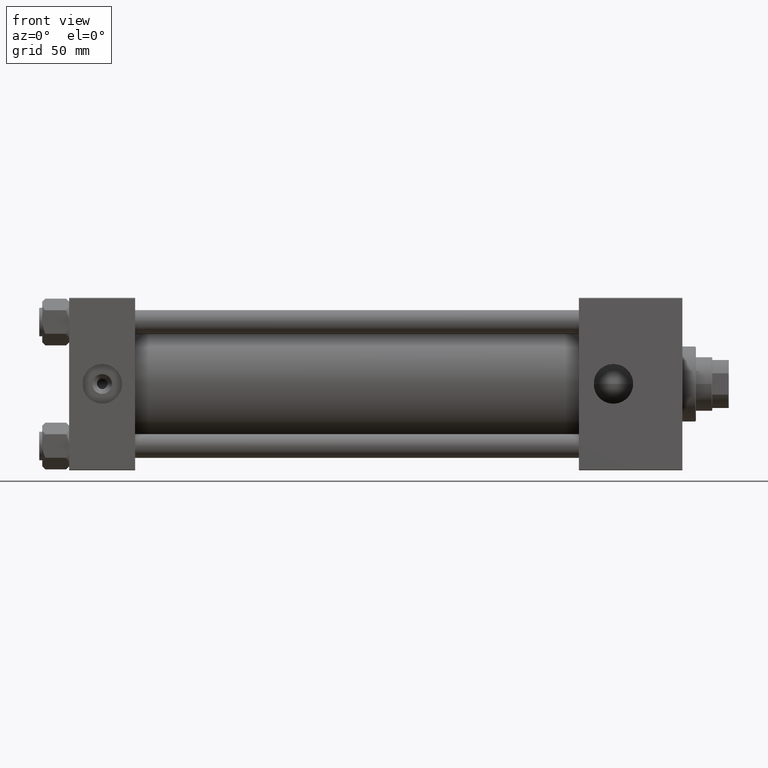
[diagram: clean part render]
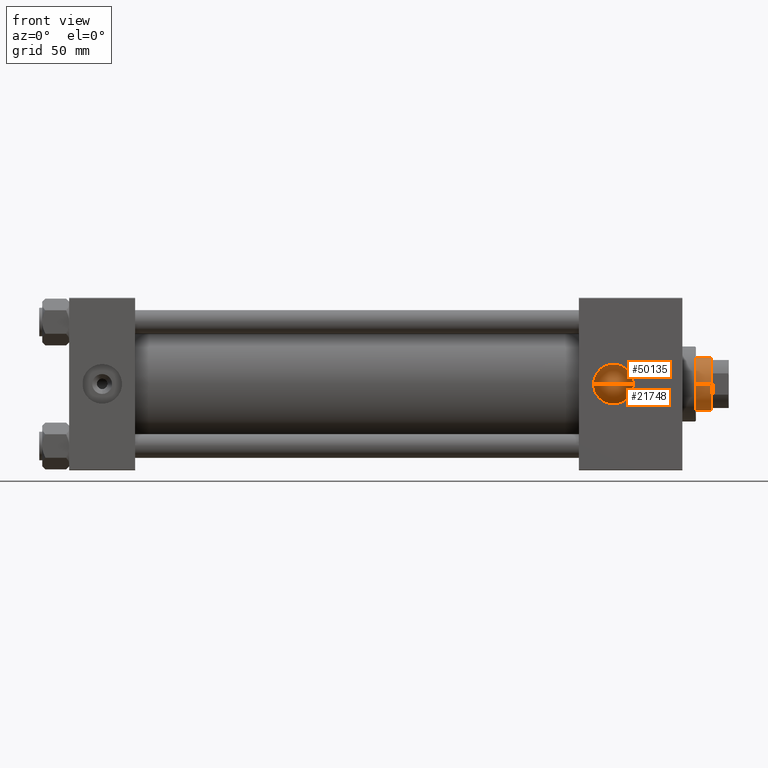
[diagram: same view with one multi-face feature highlighted, each face labeled with its STEP entity id]
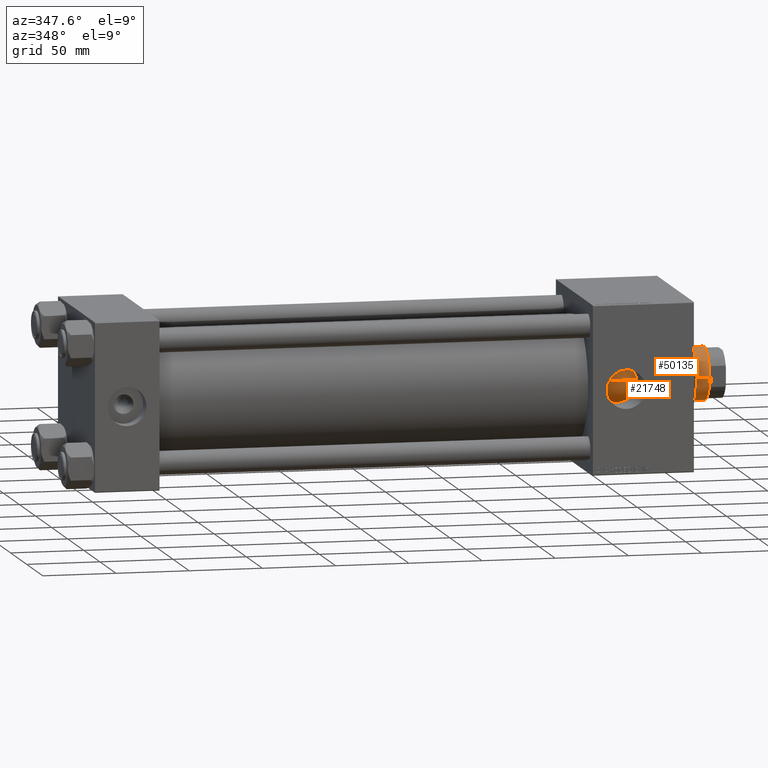
[diagram: same view with one multi-face feature highlighted, each face labeled with its STEP entity id]
A machine part, front view. The highlighted faces form ONE feature: a constant-radius fillet chain: 2 tangent blend faces with common blend radius 18 mm. The faces share edges in the B-rep.
A second angle (auxiliary view) of the same feature is appended — it is thin or edge-on in the first view.
Their STEP definitions:
[1] entity #21748 (Cylinder):
#709 = CARTESIAN_POINT ( 'NONE',  ( 18.00000000000000000, 2.204364238465235428E-15, 46.00000000000000000 ) ) ;
#1751 = EDGE_CURVE ( 'NONE', #21782, #25503, #45622, .T. ) ;
#4031 = CARTESIAN_POINT ( 'NONE',  ( -18.00000000000000000, 0.000000000000000000, 46.00000000000000000 ) ) ;
#4106 = CARTESIAN_POINT ( 'NONE',  ( -18.00000000000000000, 0.000000000000000000, 384.5000000000000568 ) ) ;
#8793 = DIRECTION ( 'NONE',  ( 0.000000000000000000, 0.000000000000000000, 1.000000000000000000 ) ) ;
#9768 = VECTOR ( 'NONE', #25537, 1000.000000000000000 ) ;
#9995 = CARTESIAN_POINT ( 'NONE',  ( 18.00000000000000000, 2.204364238465235428E-15, 384.5000000000000568 ) ) ;
#12233 = AXIS2_PLACEMENT_3D ( 'NONE', #39399, #8793, #32688 ) ;
#14526 = EDGE_CURVE ( 'NONE', #25503, #35836, #40463, .T. ) ;
#14885 = VECTOR ( 'NONE', #49186, 1000.000000000000000 ) ;
#15568 = ORIENTED_EDGE ( 'NONE', *, *, #37313, .T. ) ;
#15780 = AXIS2_PLACEMENT_3D ( 'NONE', #35461, #27480, #19022 ) ;
#19022 = DIRECTION ( 'NONE',  ( -1.000000000000000000, 0.000000000000000000, 0.000000000000000000 ) ) ;
#19229 = ORIENTED_EDGE ( 'NONE', *, *, #14526, .T. ) ;
#21748 = ADVANCED_FACE ( 'NONE', ( #39554 ), #29893, .T. ) ;
#21777 = CARTESIAN_POINT ( 'NONE',  ( 0.000000000000000000, 0.000000000000000000, 384.5000000000000568 ) ) ;
#21782 = VERTEX_POINT ( 'NONE', #4106 ) ;
#22192 = LINE ( 'NONE', #33524, #14885 ) ;
#22605 = AXIS2_PLACEMENT_3D ( 'NONE', #21777, #24604, #48777 ) ;
#23445 = EDGE_LOOP ( 'NONE', ( #29714, #19229, #15568, #35948 ) ) ;
#24604 = DIRECTION ( 'NONE',  ( 0.000000000000000000, 0.000000000000000000, -1.000000000000000000 ) ) ;
#25503 = VERTEX_POINT ( 'NONE', #9995 ) ;
#25537 = DIRECTION ( 'NONE',  ( -0.000000000000000000, -0.000000000000000000, -1.000000000000000000 ) ) ;
#27480 = DIRECTION ( 'NONE',  ( -0.000000000000000000, -0.000000000000000000, -1.000000000000000000 ) ) ;
#29714 = ORIENTED_EDGE ( 'NONE', *, *, #1751, .T. ) ;
#29893 = CYLINDRICAL_SURFACE ( 'NONE', #15780, 18.00000000000000000 ) ;
#32688 = DIRECTION ( 'NONE',  ( 1.000000000000000000, 0.000000000000000000, 0.000000000000000000 ) ) ;
#32734 = CIRCLE ( 'NONE', #12233, 18.00000000000000000 ) ;
#33524 = CARTESIAN_POINT ( 'NONE',  ( -18.00000000000000000, 0.000000000000000000, 385.0000000000000000 ) ) ;
#35461 = CARTESIAN_POINT ( 'NONE',  ( 0.000000000000000000, 0.000000000000000000, 385.0000000000000000 ) ) ;
#35836 = VERTEX_POINT ( 'NONE', #709 ) ;
#35948 = ORIENTED_EDGE ( 'NONE', *, *, #43066, .F. ) ;
#37313 = EDGE_CURVE ( 'NONE', #35836, #50206, #32734, .T. ) ;
#39399 = CARTESIAN_POINT ( 'NONE',  ( 0.000000000000000000, 0.000000000000000000, 46.00000000000000000 ) ) ;
#39554 = FACE_OUTER_BOUND ( 'NONE', #23445, .T. ) ;
#40463 = LINE ( 'NONE', #45350, #9768 ) ;
#43066 = EDGE_CURVE ( 'NONE', #21782, #50206, #22192, .T. ) ;
#45350 = CARTESIAN_POINT ( 'NONE',  ( 18.00000000000000000, 2.204364238465235428E-15, 385.0000000000000000 ) ) ;
#45622 = CIRCLE ( 'NONE', #22605, 18.00000000000000000 ) ;
#48777 = DIRECTION ( 'NONE',  ( 1.000000000000000000, 0.000000000000000000, 0.000000000000000000 ) ) ;
#49186 = DIRECTION ( 'NONE',  ( -0.000000000000000000, -0.000000000000000000, -1.000000000000000000 ) ) ;
#50206 = VERTEX_POINT ( 'NONE', #4031 ) ;
[2] entity #50135 (Cylinder):
#709 = CARTESIAN_POINT ( 'NONE',  ( 18.00000000000000000, 2.204364238465235428E-15, 46.00000000000000000 ) ) ;
#4031 = CARTESIAN_POINT ( 'NONE',  ( -18.00000000000000000, 0.000000000000000000, 46.00000000000000000 ) ) ;
#4106 = CARTESIAN_POINT ( 'NONE',  ( -18.00000000000000000, 0.000000000000000000, 384.5000000000000568 ) ) ;
#5126 = AXIS2_PLACEMENT_3D ( 'NONE', #31050, #11530, #42870 ) ;
#7877 = CARTESIAN_POINT ( 'NONE',  ( 0.000000000000000000, 0.000000000000000000, 385.0000000000000000 ) ) ;
#8781 = CARTESIAN_POINT ( 'NONE',  ( 0.000000000000000000, 0.000000000000000000, 384.5000000000000568 ) ) ;
#9768 = VECTOR ( 'NONE', #25537, 1000.000000000000000 ) ;
#9995 = CARTESIAN_POINT ( 'NONE',  ( 18.00000000000000000, 2.204364238465235428E-15, 384.5000000000000568 ) ) ;
#11530 = DIRECTION ( 'NONE',  ( 0.000000000000000000, 0.000000000000000000, 1.000000000000000000 ) ) ;
#11745 = DIRECTION ( 'NONE',  ( -0.000000000000000000, -0.000000000000000000, -1.000000000000000000 ) ) ;
#13865 = EDGE_CURVE ( 'NONE', #25503, #21782, #32761, .T. ) ;
#14165 = CIRCLE ( 'NONE', #5126, 18.00000000000000000 ) ;
#14526 = EDGE_CURVE ( 'NONE', #25503, #35836, #40463, .T. ) ;
#14885 = VECTOR ( 'NONE', #49186, 1000.000000000000000 ) ;
#17889 = ORIENTED_EDGE ( 'NONE', *, *, #14526, .F. ) ;
#20341 = DIRECTION ( 'NONE',  ( 0.000000000000000000, 0.000000000000000000, -1.000000000000000000 ) ) ;
#21098 = DIRECTION ( 'NONE',  ( 1.000000000000000000, 0.000000000000000000, 0.000000000000000000 ) ) ;
#21534 = ORIENTED_EDGE ( 'NONE', *, *, #13865, .T. ) ;
#21782 = VERTEX_POINT ( 'NONE', #4106 ) ;
#22192 = LINE ( 'NONE', #33524, #14885 ) ;
#25503 = VERTEX_POINT ( 'NONE', #9995 ) ;
#25537 = DIRECTION ( 'NONE',  ( -0.000000000000000000, -0.000000000000000000, -1.000000000000000000 ) ) ;
#25959 = EDGE_LOOP ( 'NONE', ( #17889, #21534, #49234, #48001 ) ) ;
#26629 = EDGE_CURVE ( 'NONE', #50206, #35836, #14165, .T. ) ;
#26893 = DIRECTION ( 'NONE',  ( -1.000000000000000000, 0.000000000000000000, 0.000000000000000000 ) ) ;
#30323 = AXIS2_PLACEMENT_3D ( 'NONE', #8781, #20341, #21098 ) ;
#31050 = CARTESIAN_POINT ( 'NONE',  ( 0.000000000000000000, 0.000000000000000000, 46.00000000000000000 ) ) ;
#32761 = CIRCLE ( 'NONE', #30323, 18.00000000000000000 ) ;
#33524 = CARTESIAN_POINT ( 'NONE',  ( -18.00000000000000000, 0.000000000000000000, 385.0000000000000000 ) ) ;
#35836 = VERTEX_POINT ( 'NONE', #709 ) ;
#40463 = LINE ( 'NONE', #45350, #9768 ) ;
#42328 = FACE_OUTER_BOUND ( 'NONE', #25959, .T. ) ;
#42870 = DIRECTION ( 'NONE',  ( 1.000000000000000000, 0.000000000000000000, 0.000000000000000000 ) ) ;
#43066 = EDGE_CURVE ( 'NONE', #21782, #50206, #22192, .T. ) ;
#45350 = CARTESIAN_POINT ( 'NONE',  ( 18.00000000000000000, 2.204364238465235428E-15, 385.0000000000000000 ) ) ;
#46206 = AXIS2_PLACEMENT_3D ( 'NONE', #7877, #11745, #26893 ) ;
#46933 = CYLINDRICAL_SURFACE ( 'NONE', #46206, 18.00000000000000000 ) ;
#48001 = ORIENTED_EDGE ( 'NONE', *, *, #26629, .T. ) ;
#49186 = DIRECTION ( 'NONE',  ( -0.000000000000000000, -0.000000000000000000, -1.000000000000000000 ) ) ;
#49234 = ORIENTED_EDGE ( 'NONE', *, *, #43066, .T. ) ;
#50135 = ADVANCED_FACE ( 'NONE', ( #42328 ), #46933, .T. ) ;
#50206 = VERTEX_POINT ( 'NONE', #4031 ) ;